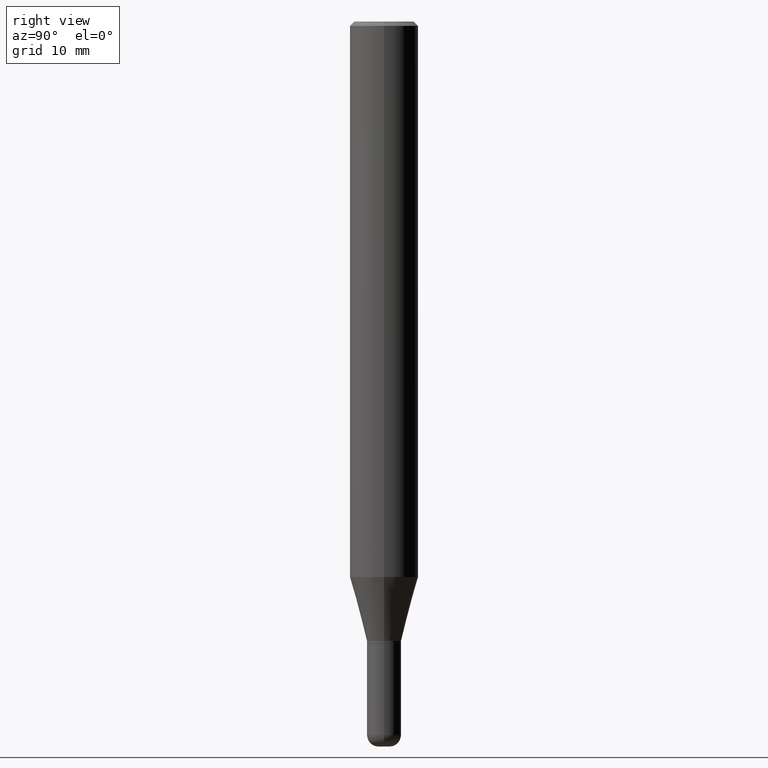
[diagram: clean part render]
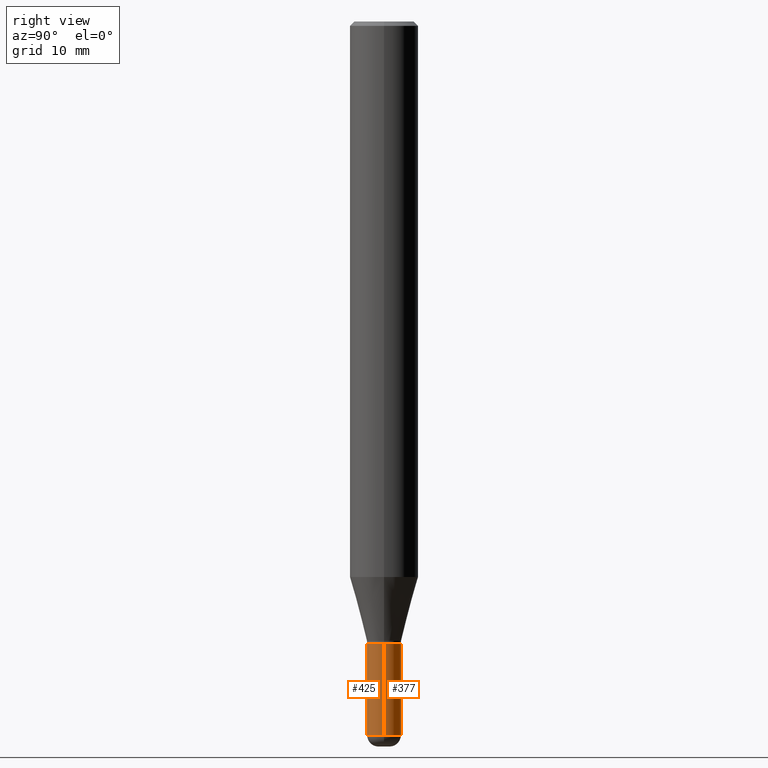
[diagram: same view with one multi-face feature highlighted, each face labeled with its STEP entity id]
A machine part, right view. The highlighted faces form ONE feature: a constant-radius fillet chain: 2 tangent blend faces with common blend radius 1.4999 mm. The faces share edges in the B-rep.
Their STEP definitions:
[1] entity #377 (Cylinder):
#4 = DIRECTION ( 'NONE',  ( 1.000000000000000000, -6.982962677686280910E-15, 0.000000000000000000 ) ) ;
#5 = AXIS2_PLACEMENT_3D ( 'NONE', #480, #48, #4 ) ;
#11 = AXIS2_PLACEMENT_3D ( 'NONE', #71, #336, #231 ) ;
#24 = CIRCLE ( 'NONE', #5, 0.05905000000000006771 ) ;
#25 = CARTESIAN_POINT ( 'NONE',  ( 0.05905000000000003302, -4.123439461173742792E-16, 2.879382386107501972E-30 ) ) ;
#45 = VERTEX_POINT ( 'NONE', #384 ) ;
#48 = DIRECTION ( 'NONE',  ( -2.445468806185136597E-29, 3.491481338843145583E-15, 1.000000000000000000 ) ) ;
#59 = ORIENTED_EDGE ( 'NONE', *, *, #395, .T. ) ;
#64 = EDGE_CURVE ( 'NONE', #412, #411, #65, .T. ) ;
#65 = CIRCLE ( 'NONE', #156, 0.05904999999999999832 ) ;
#71 = CARTESIAN_POINT ( 'NONE',  ( 0.000000000000000000, 0.000000000000000000, 0.000000000000000000 ) ) ;
#79 = CARTESIAN_POINT ( 'NONE',  ( 5.247242417431447608E-29, -7.491671508755737816E-15, -2.145700000000000163 ) ) ;
#122 = DIRECTION ( 'NONE',  ( -2.445468806185136597E-29, 3.491481338843145583E-15, 1.000000000000000000 ) ) ;
#143 = LINE ( 'NONE', #25, #311 ) ;
#154 = EDGE_LOOP ( 'NONE', ( #254, #59, #423, #369 ) ) ;
#156 = AXIS2_PLACEMENT_3D ( 'NONE', #79, #122, #421 ) ;
#168 = EDGE_CURVE ( 'NONE', #268, #45, #24, .T. ) ;
#188 = LINE ( 'NONE', #342, #241 ) ;
#193 = DIRECTION ( 'NONE',  ( -2.445468806185136877E-29, 3.491481338843145188E-15, 1.000000000000000000 ) ) ;
#231 = DIRECTION ( 'NONE',  ( 1.000000000000000000, -6.982962677686266711E-15, 4.876176775795936353E-29 ) ) ;
#241 = VECTOR ( 'NONE', #424, 39.37007874015748143 ) ;
#254 = ORIENTED_EDGE ( 'NONE', *, *, #168, .T. ) ;
#268 = VERTEX_POINT ( 'NONE', #325 ) ;
#272 = FACE_OUTER_BOUND ( 'NONE', #154, .T. ) ;
#303 = CARTESIAN_POINT ( 'NONE',  ( -0.05904999999999999832, -7.621829760090250701E-15, -2.145700000000000163 ) ) ;
#311 = VECTOR ( 'NONE', #193, 39.37007874015748143 ) ;
#325 = CARTESIAN_POINT ( 'NONE',  ( 0.05905000000000006771, -9.003482928474819860E-15, -2.460599999999999898 ) ) ;
#336 = DIRECTION ( 'NONE',  ( -2.445468806185136597E-29, 3.491481338843145583E-15, 1.000000000000000000 ) ) ;
#342 = CARTESIAN_POINT ( 'NONE',  ( -0.05905000000000003302, 4.195754854663393944E-16, -2.904631170795523644E-30 ) ) ;
#369 = ORIENTED_EDGE ( 'NONE', *, *, #386, .F. ) ;
#377 = ADVANCED_FACE ( 'NONE', ( #272 ), #497, .T. ) ;
#384 = CARTESIAN_POINT ( 'NONE',  ( -0.05905000000000007465, -7.621829760090250701E-15, -2.460599999999999898 ) ) ;
#386 = EDGE_CURVE ( 'NONE', #268, #412, #143, .T. ) ;
#395 = EDGE_CURVE ( 'NONE', #45, #411, #188, .T. ) ;
#411 = VERTEX_POINT ( 'NONE', #303 ) ;
#412 = VERTEX_POINT ( 'NONE', #456 ) ;
#421 = DIRECTION ( 'NONE',  ( 1.000000000000000000, -6.982962677686273021E-15, 0.000000000000000000 ) ) ;
#423 = ORIENTED_EDGE ( 'NONE', *, *, #64, .F. ) ;
#424 = DIRECTION ( 'NONE',  ( -2.445468806185136877E-29, 3.491481338843145188E-15, 1.000000000000000000 ) ) ;
#456 = CARTESIAN_POINT ( 'NONE',  ( 0.05904999999999999832, -7.904015454873111947E-15, -2.145700000000000163 ) ) ;
#480 = CARTESIAN_POINT ( 'NONE',  ( 6.017320544499146897E-29, -8.591138982357444151E-15, -2.460599999999999898 ) ) ;
#497 = CYLINDRICAL_SURFACE ( 'NONE', #11, 0.05905000000000003302 ) ;
[2] entity #425 (Cylinder):
#25 = CARTESIAN_POINT ( 'NONE',  ( 0.05905000000000003302, -4.123439461173742792E-16, 2.879382386107501972E-30 ) ) ;
#45 = VERTEX_POINT ( 'NONE', #384 ) ;
#66 = DIRECTION ( 'NONE',  ( 1.000000000000000000, -6.982962677686280910E-15, 0.000000000000000000 ) ) ;
#96 = AXIS2_PLACEMENT_3D ( 'NONE', #116, #233, #381 ) ;
#98 = EDGE_LOOP ( 'NONE', ( #285, #496, #309, #367 ) ) ;
#113 = DIRECTION ( 'NONE',  ( -2.445468806185136597E-29, 3.491481338843145583E-15, 1.000000000000000000 ) ) ;
#116 = CARTESIAN_POINT ( 'NONE',  ( 5.247242417431447608E-29, -7.491671508755737816E-15, -2.145700000000000163 ) ) ;
#143 = LINE ( 'NONE', #25, #311 ) ;
#188 = LINE ( 'NONE', #342, #241 ) ;
#193 = DIRECTION ( 'NONE',  ( -2.445468806185136877E-29, 3.491481338843145188E-15, 1.000000000000000000 ) ) ;
#204 = AXIS2_PLACEMENT_3D ( 'NONE', #453, #491, #66 ) ;
#233 = DIRECTION ( 'NONE',  ( -2.445468806185136597E-29, 3.491481338843145583E-15, 1.000000000000000000 ) ) ;
#238 = CIRCLE ( 'NONE', #204, 0.05905000000000006771 ) ;
#241 = VECTOR ( 'NONE', #424, 39.37007874015748143 ) ;
#243 = EDGE_CURVE ( 'NONE', #45, #268, #238, .T. ) ;
#267 = CARTESIAN_POINT ( 'NONE',  ( 0.000000000000000000, 0.000000000000000000, 0.000000000000000000 ) ) ;
#268 = VERTEX_POINT ( 'NONE', #325 ) ;
#285 = ORIENTED_EDGE ( 'NONE', *, *, #395, .F. ) ;
#303 = CARTESIAN_POINT ( 'NONE',  ( -0.05904999999999999832, -7.621829760090250701E-15, -2.145700000000000163 ) ) ;
#309 = ORIENTED_EDGE ( 'NONE', *, *, #386, .T. ) ;
#311 = VECTOR ( 'NONE', #193, 39.37007874015748143 ) ;
#325 = CARTESIAN_POINT ( 'NONE',  ( 0.05905000000000006771, -9.003482928474819860E-15, -2.460599999999999898 ) ) ;
#339 = AXIS2_PLACEMENT_3D ( 'NONE', #267, #113, #501 ) ;
#342 = CARTESIAN_POINT ( 'NONE',  ( -0.05905000000000003302, 4.195754854663393944E-16, -2.904631170795523644E-30 ) ) ;
#367 = ORIENTED_EDGE ( 'NONE', *, *, #459, .F. ) ;
#381 = DIRECTION ( 'NONE',  ( 1.000000000000000000, -6.982962677686273021E-15, 0.000000000000000000 ) ) ;
#383 = CYLINDRICAL_SURFACE ( 'NONE', #339, 0.05905000000000003302 ) ;
#384 = CARTESIAN_POINT ( 'NONE',  ( -0.05905000000000007465, -7.621829760090250701E-15, -2.460599999999999898 ) ) ;
#386 = EDGE_CURVE ( 'NONE', #268, #412, #143, .T. ) ;
#395 = EDGE_CURVE ( 'NONE', #45, #411, #188, .T. ) ;
#407 = CIRCLE ( 'NONE', #96, 0.05904999999999999832 ) ;
#411 = VERTEX_POINT ( 'NONE', #303 ) ;
#412 = VERTEX_POINT ( 'NONE', #456 ) ;
#424 = DIRECTION ( 'NONE',  ( -2.445468806185136877E-29, 3.491481338843145188E-15, 1.000000000000000000 ) ) ;
#425 = ADVANCED_FACE ( 'NONE', ( #508 ), #383, .T. ) ;
#453 = CARTESIAN_POINT ( 'NONE',  ( 6.017320544499146897E-29, -8.591138982357444151E-15, -2.460599999999999898 ) ) ;
#456 = CARTESIAN_POINT ( 'NONE',  ( 0.05904999999999999832, -7.904015454873111947E-15, -2.145700000000000163 ) ) ;
#459 = EDGE_CURVE ( 'NONE', #411, #412, #407, .T. ) ;
#491 = DIRECTION ( 'NONE',  ( -2.445468806185136597E-29, 3.491481338843145583E-15, 1.000000000000000000 ) ) ;
#496 = ORIENTED_EDGE ( 'NONE', *, *, #243, .T. ) ;
#501 = DIRECTION ( 'NONE',  ( 1.000000000000000000, -6.982962677686266711E-15, 4.876176775795936353E-29 ) ) ;
#508 = FACE_OUTER_BOUND ( 'NONE', #98, .T. ) ;